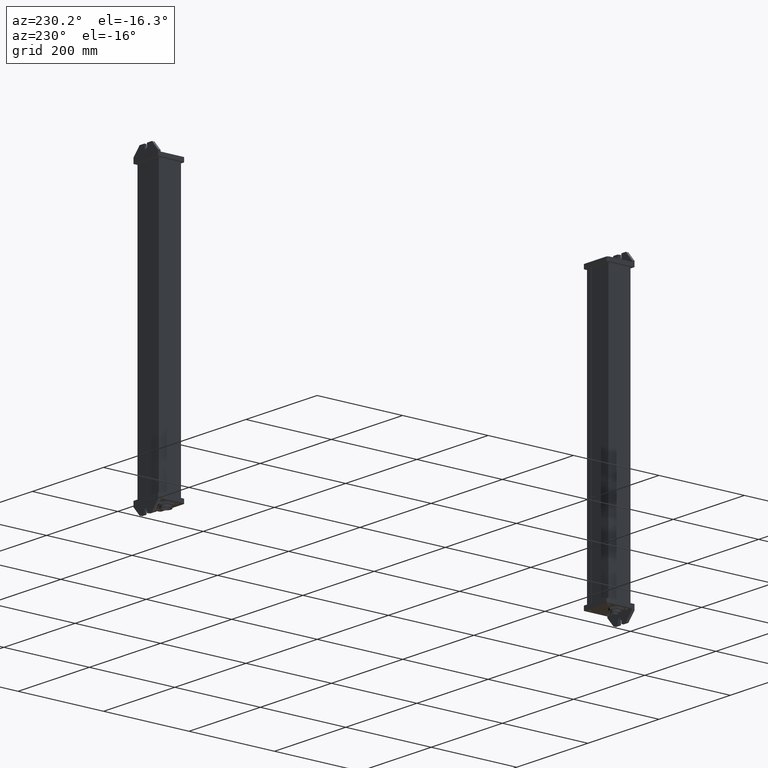
[diagram: clean part render]
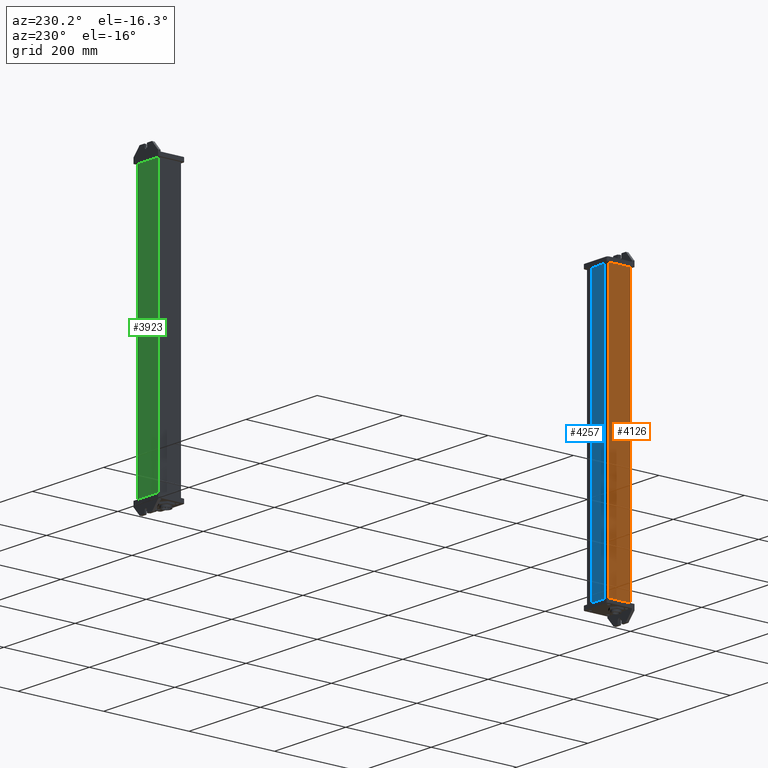
[diagram: same view with three faces highlighted in distinct colors, each labeled with its STEP entity id]
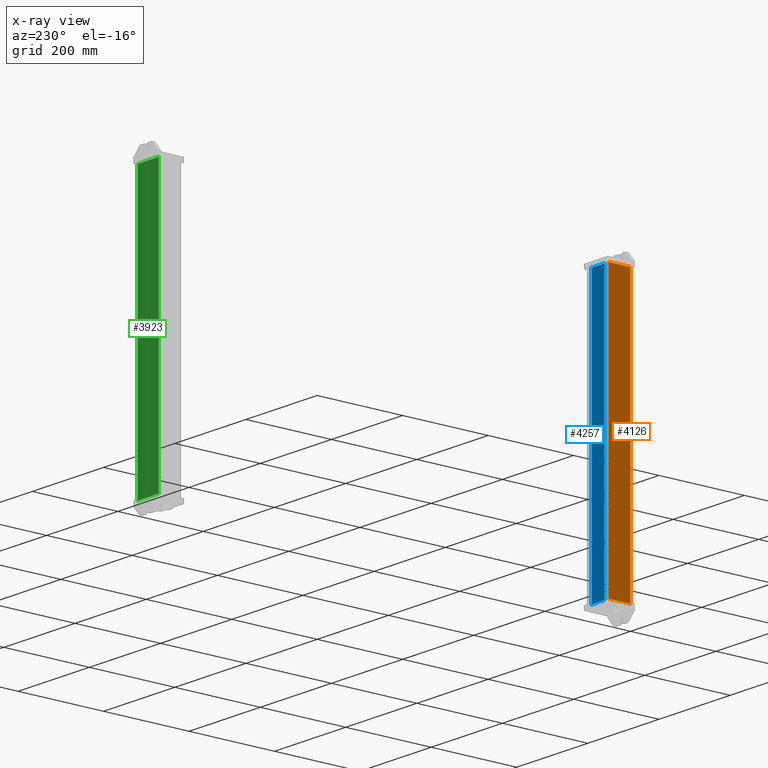
[diagram: x-ray of the same camera — body ghosted, the three highlighted faces saturated]
A machine part, auxiliary view with three faces highlighted in distinct colors.
The next image is the same camera in x-ray (body ghosted, the three faces saturated) — at least one of them is partly hidden behind the body in this view.
Their STEP definitions:

[orange] entity #4126 — the highlighted planar face has unit normal (-1, 0, 0).
#3889=CARTESIAN_POINT('Line Origine',(0.,0.,315.5)) ;
#3893=CARTESIAN_POINT('Vertex',(0.,0.,0.)) ;
#3895=CARTESIAN_POINT('Vertex',(0.,0.,631.)) ;
#4083=CARTESIAN_POINT('Vertex',(3.5527136788E-015,52.,0.)) ;
#4086=CARTESIAN_POINT('Line Origine',(7.1054273576E-015,52.,315.5)) ;
#4090=CARTESIAN_POINT('Vertex',(3.5527136788E-015,52.,631.)) ;
#4105=CARTESIAN_POINT('Axis2P3D Location',(0.,52.,0.)) ;
#4110=CARTESIAN_POINT('Line Origine',(0.,26.,0.)) ;
#4115=CARTESIAN_POINT('Line Origine',(0.,26.,631.)) ;
#3890=DIRECTION('Vector Direction',(0.,0.,1.)) ;
#4087=DIRECTION('Vector Direction',(0.,0.,1.)) ;
#4106=DIRECTION('Axis2P3D Direction',(-1.,0.,0.)) ;
#4107=DIRECTION('Axis2P3D XDirection',(0.,-1.,0.)) ;
#4111=DIRECTION('Vector Direction',(0.,-1.,0.)) ;
#4116=DIRECTION('Vector Direction',(0.,-1.,0.)) ;
#4108=AXIS2_PLACEMENT_3D('Plane Axis2P3D',#4105,#4106,#4107) ;
#4121=ORIENTED_EDGE('',*,*,#4092,.F.) ;
#4122=ORIENTED_EDGE('',*,*,#4114,.T.) ;
#4123=ORIENTED_EDGE('',*,*,#3897,.T.) ;
#4124=ORIENTED_EDGE('',*,*,#4119,.F.) ;
#3891=VECTOR('Line Direction',#3890,1.) ;
#4088=VECTOR('Line Direction',#4087,1.) ;
#4112=VECTOR('Line Direction',#4111,1.) ;
#4117=VECTOR('Line Direction',#4116,1.) ;
#4126=ADVANCED_FACE('PartBody',(#4125),#4109,.T.) ;
#3897=EDGE_CURVE('',#3894,#3896,#3892,.T.) ;
#4092=EDGE_CURVE('',#4084,#4091,#4089,.T.) ;
#4114=EDGE_CURVE('',#4084,#3894,#4113,.T.) ;
#4119=EDGE_CURVE('',#4091,#3896,#4118,.T.) ;
#4120=EDGE_LOOP('',(#4121,#4122,#4123,#4124)) ;
#4125=FACE_OUTER_BOUND('',#4120,.T.) ;
#3892=LINE('Line',#3889,#3891) ;
#4089=LINE('Line',#4086,#4088) ;
#4113=LINE('Line',#4110,#4112) ;
#4118=LINE('Line',#4115,#4117) ;
#4109=PLANE('Plane',#4108) ;
#3894=VERTEX_POINT('',#3893) ;
#3896=VERTEX_POINT('',#3895) ;
#4084=VERTEX_POINT('',#4083) ;
#4091=VERTEX_POINT('',#4090) ;

[blue] entity #4257 — the highlighted planar face has unit normal (0, 1, 0).
#4174=CARTESIAN_POINT('Vertex',(12.,51.,0.)) ;
#4177=CARTESIAN_POINT('Line Origine',(30.,51.,0.)) ;
#4181=CARTESIAN_POINT('Vertex',(48.,51.,0.)) ;
#4214=CARTESIAN_POINT('Vertex',(12.,51.,631.)) ;
#4217=CARTESIAN_POINT('Line Origine',(12.,51.,315.5)) ;
#4234=CARTESIAN_POINT('Axis2P3D Location',(48.,51.,0.)) ;
#4239=CARTESIAN_POINT('Line Origine',(48.,51.,315.5)) ;
#4243=CARTESIAN_POINT('Vertex',(48.,51.,631.)) ;
#4246=CARTESIAN_POINT('Line Origine',(30.,51.,631.)) ;
#4178=DIRECTION('Vector Direction',(-1.,0.,0.)) ;
#4218=DIRECTION('Vector Direction',(0.,0.,1.)) ;
#4235=DIRECTION('Axis2P3D Direction',(0.,1.,-0.)) ;
#4236=DIRECTION('Axis2P3D XDirection',(-1.,0.,0.)) ;
#4240=DIRECTION('Vector Direction',(0.,0.,1.)) ;
#4247=DIRECTION('Vector Direction',(-1.,0.,0.)) ;
#4237=AXIS2_PLACEMENT_3D('Plane Axis2P3D',#4234,#4235,#4236) ;
#4252=ORIENTED_EDGE('',*,*,#4245,.F.) ;
#4253=ORIENTED_EDGE('',*,*,#4183,.F.) ;
#4254=ORIENTED_EDGE('',*,*,#4221,.T.) ;
#4255=ORIENTED_EDGE('',*,*,#4250,.F.) ;
#4179=VECTOR('Line Direction',#4178,1.) ;
#4219=VECTOR('Line Direction',#4218,1.) ;
#4241=VECTOR('Line Direction',#4240,1.) ;
#4248=VECTOR('Line Direction',#4247,1.) ;
#4257=ADVANCED_FACE('Body.2',(#4256),#4238,.T.) ;
#4183=EDGE_CURVE('',#4175,#4182,#4180,.F.) ;
#4221=EDGE_CURVE('',#4175,#4215,#4220,.T.) ;
#4245=EDGE_CURVE('',#4182,#4244,#4242,.T.) ;
#4250=EDGE_CURVE('',#4244,#4215,#4249,.T.) ;
#4251=EDGE_LOOP('',(#4252,#4253,#4254,#4255)) ;
#4256=FACE_OUTER_BOUND('',#4251,.T.) ;
#4180=LINE('Line',#4177,#4179) ;
#4220=LINE('Line',#4217,#4219) ;
#4242=LINE('Line',#4239,#4241) ;
#4249=LINE('Line',#4246,#4248) ;
#4238=PLANE('Plane',#4237) ;
#4175=VERTEX_POINT('',#4174) ;
#4182=VERTEX_POINT('',#4181) ;
#4215=VERTEX_POINT('',#4214) ;
#4244=VERTEX_POINT('',#4243) ;

[green] entity #3923 — the highlighted planar face has unit normal (0, 1, 0).
#3884=CARTESIAN_POINT('Axis2P3D Location',(0.,0.,0.)) ;
#3889=CARTESIAN_POINT('Line Origine',(0.,0.,315.5)) ;
#3893=CARTESIAN_POINT('Vertex',(0.,0.,0.)) ;
#3895=CARTESIAN_POINT('Vertex',(0.,0.,631.)) ;
#3898=CARTESIAN_POINT('Line Origine',(30.,0.,0.)) ;
#3902=CARTESIAN_POINT('Vertex',(60.,0.,0.)) ;
#3905=CARTESIAN_POINT('Line Origine',(60.,0.,315.5)) ;
#3909=CARTESIAN_POINT('Vertex',(60.,0.,631.)) ;
#3912=CARTESIAN_POINT('Line Origine',(30.,0.,631.)) ;
#3885=DIRECTION('Axis2P3D Direction',(0.,-1.,0.)) ;
#3886=DIRECTION('Axis2P3D XDirection',(1.,0.,0.)) ;
#3890=DIRECTION('Vector Direction',(0.,0.,1.)) ;
#3899=DIRECTION('Vector Direction',(1.,0.,0.)) ;
#3906=DIRECTION('Vector Direction',(0.,0.,1.)) ;
#3913=DIRECTION('Vector Direction',(1.,0.,0.)) ;
#3887=AXIS2_PLACEMENT_3D('Plane Axis2P3D',#3884,#3885,#3886) ;
#3918=ORIENTED_EDGE('',*,*,#3897,.F.) ;
#3919=ORIENTED_EDGE('',*,*,#3904,.T.) ;
#3920=ORIENTED_EDGE('',*,*,#3911,.T.) ;
#3921=ORIENTED_EDGE('',*,*,#3916,.F.) ;
#3891=VECTOR('Line Direction',#3890,1.) ;
#3900=VECTOR('Line Direction',#3899,1.) ;
#3907=VECTOR('Line Direction',#3906,1.) ;
#3914=VECTOR('Line Direction',#3913,1.) ;
#3923=ADVANCED_FACE('PartBody',(#3922),#3888,.T.) ;
#3897=EDGE_CURVE('',#3894,#3896,#3892,.T.) ;
#3904=EDGE_CURVE('',#3894,#3903,#3901,.T.) ;
#3911=EDGE_CURVE('',#3903,#3910,#3908,.T.) ;
#3916=EDGE_CURVE('',#3896,#3910,#3915,.T.) ;
#3917=EDGE_LOOP('',(#3918,#3919,#3920,#3921)) ;
#3922=FACE_OUTER_BOUND('',#3917,.T.) ;
#3892=LINE('Line',#3889,#3891) ;
#3901=LINE('Line',#3898,#3900) ;
#3908=LINE('Line',#3905,#3907) ;
#3915=LINE('Line',#3912,#3914) ;
#3888=PLANE('Plane',#3887) ;
#3894=VERTEX_POINT('',#3893) ;
#3896=VERTEX_POINT('',#3895) ;
#3903=VERTEX_POINT('',#3902) ;
#3910=VERTEX_POINT('',#3909) ;